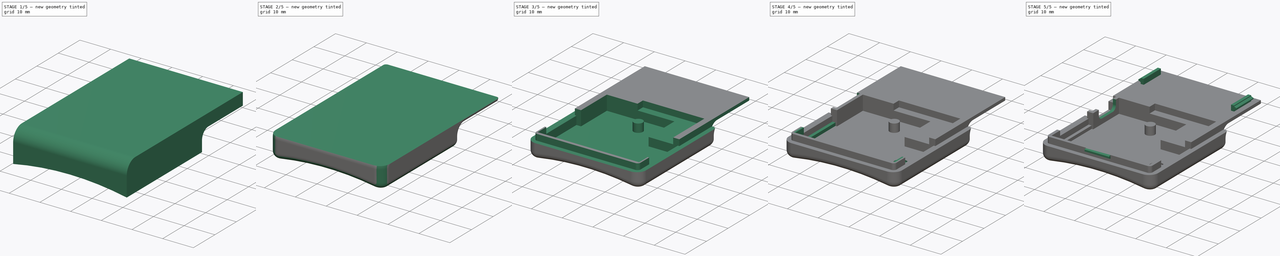
[diagram: build sequence overview — one tinted view per stage of 5, left to right]
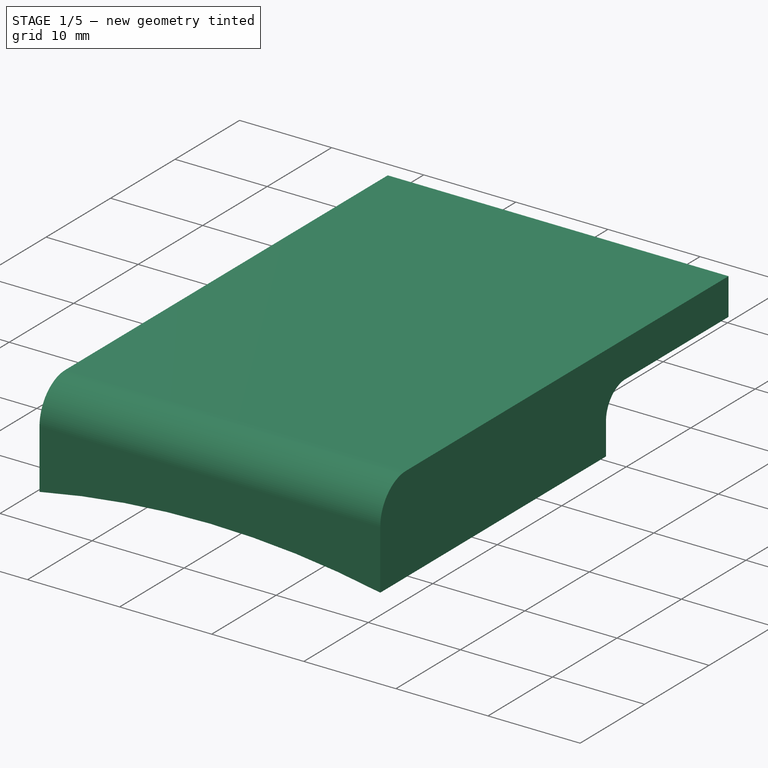
[diagram: stage 1 of 5 — iso view after this stage's code; geometry added in this stage tinted green]
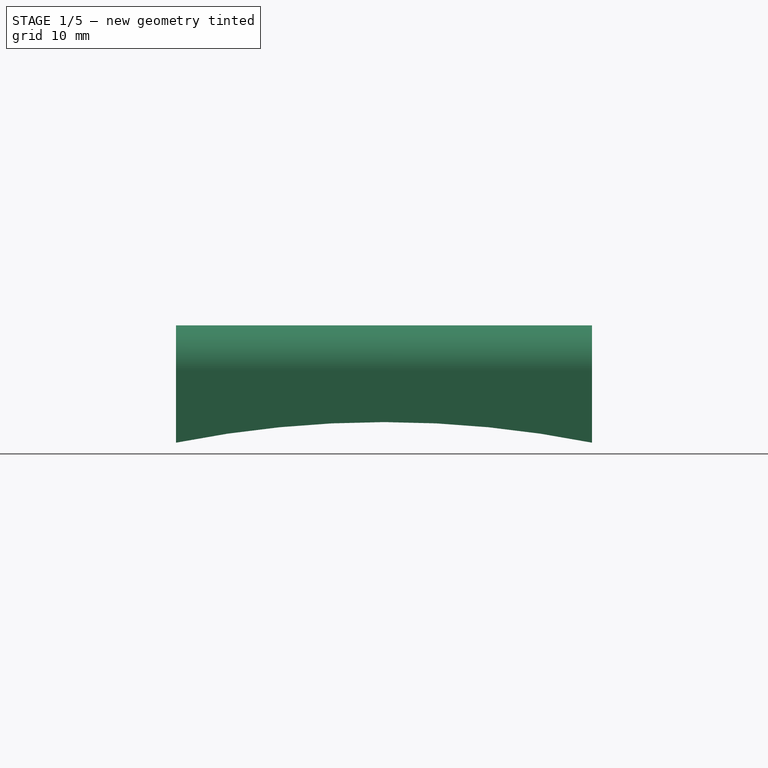
[diagram: stage 1 of 5 — front view after this stage's code; geometry added in this stage tinted green]
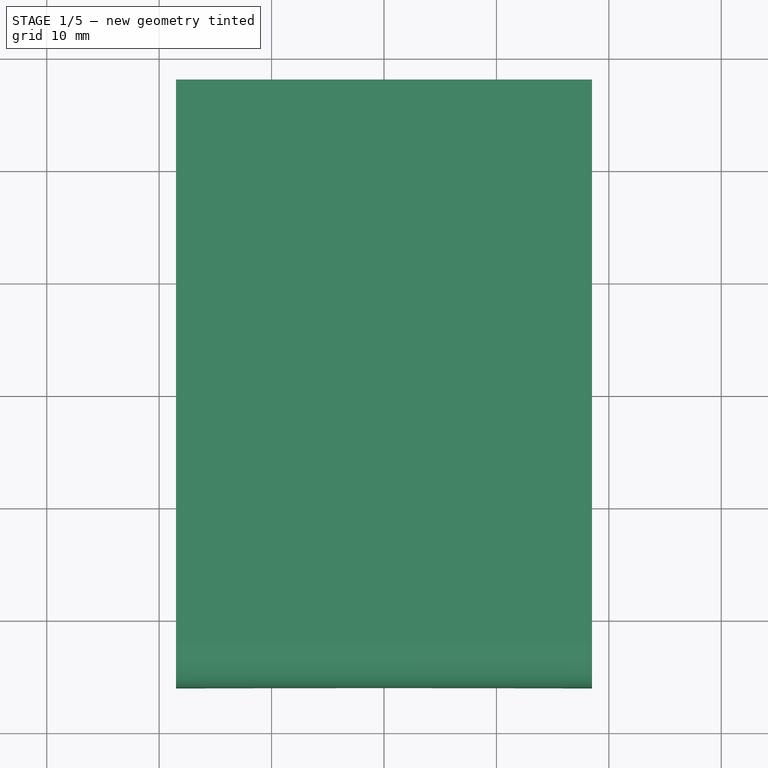
[diagram: stage 1 of 5 — top view after this stage's code; geometry added in this stage tinted green]
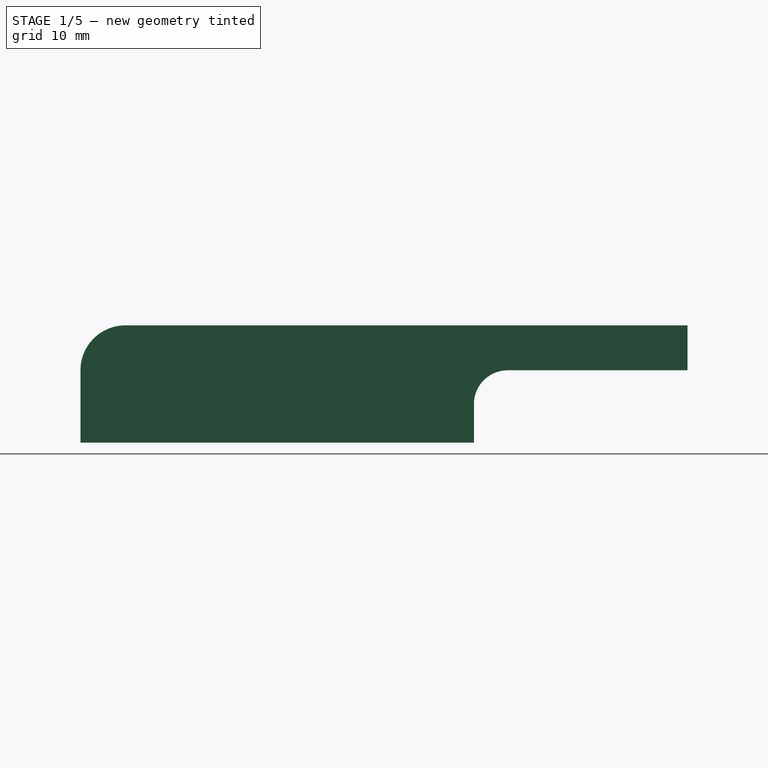
[diagram: stage 1 of 5 — right view after this stage's code; geometry added in this stage tinted green]
FCSTD DOCUMENT  (FreeCAD 0.17R13050 (Git))
Label: Limitter Small Lower
License: All rights reserved
LicenseURL: http://en.wikipedia.org/wiki/All_rights_reserved
objects: Sketcher::SketchObject×28, PartDesign::Pocket×12, Part::Feature×9, PartDesign::Fillet×7, PartDesign::Pad×5, App::Part×1, PartDesign::Body×1
note: 79 computed .brp shape members not serialized (recipe doc carries the construction recipe); baked Part::Feature solids carry a one-line shape summary decoded from their .brp

FEATURE [Sketcher::SketchObject] Sketch
  MapMode = 5
  Support = -> [XY_Plane]
  sketch-geometry (4):
    g0: LineSegment StartX=-18.5 StartY=38 StartZ=0 EndX=18.5 EndY=38 EndZ=0
    g1: LineSegment StartX=18.5 StartY=38 StartZ=0 EndX=18.5 EndY=-16 EndZ=0
    g2: LineSegment StartX=18.5 StartY=-16 StartZ=0 EndX=-18.5 EndY=-16 EndZ=0
    g3: LineSegment StartX=-18.5 StartY=-16 StartZ=0 EndX=-18.5 EndY=38 EndZ=0
  constraints (12):
    c: Coincident(g0,g1)
    c: Coincident(g1,g2)
    c: Coincident(g2,g3)
    c: Coincident(g3,g0)
    c: Horizontal(g0)
    c: Horizontal(g2)
    c: Vertical(g1)
    c: Vertical(g3)
    c: DistanceX(g0,g0) = 37
    c: DistanceX(g0,g-1) = 18.5
    c: DistanceY(g1,g1) = 54
    c: DistanceY(g1,g-1) = 16
FEATURE [PartDesign::Pad] Pad
  Length = 13
  Length2 = 100
  Profile = -> Sketch
  Type = 0
FEATURE [Part::Feature] Part__Feature  label="Arduino"
  Placement = pos=(-13,3.5,7.5) rot=(-1,0,0;1.5708rad)
  shape: bbox 33 x 17.8 x 1.8 mm, 449 faces (baked)
FEATURE [Part::Feature] Part__Feature003  label="Battery"
  Placement = pos=(0.5,-8.5,8) rot=(0,0,-1;1.5708rad)
  shape: bbox 31 x 10 x 4 mm, 10 faces (baked)
FEATURE [Part::Feature] Part__Feature004  label="BM019"
  Placement = pos=(0,16.5,10) rot=(0,0,1;1.5708rad)
  shape: bbox 27.94 x 38.1 x 1.95 mm, 118 faces (baked)
FEATURE [Part::Feature] Part__Feature005  label="HM-11"
  Placement = pos=(7,9.5,9.5) rot=(0,1,0;3.14159rad)
  shape: bbox 13.5 x 18.5 x 1.3 mm, 176 faces (baked)
FEATURE [Part::Feature] Part__Feature006  label="Libre"
  Placement = pos=(0,38,1) rot=(0,0,1;0rad)
  shape: bbox 37.88 x 37.88 x 5 mm, 4 faces (baked)
FEATURE [Sketcher::SketchObject] Sketch001
  MapMode = 5
  Placement = pos=(0,-16,0) rot=(1,0,0;1.5708rad)
  Support = -> [Pad]
  sketch-geometry (2):
    g0: ArcOfCircle CenterX=2e-12 CenterY=-90 CenterZ=0 NormalX=0 NormalY=0 NormalZ=1 AngleXU=0 Radius=94.3941 StartAngle=1.24737 EndAngle=1.89422
    g1: LineSegment StartX=-30 StartY=-0.5 StartZ=0 EndX=30 EndY=-0.5 EndZ=0
  constraints (6):
    c: DistanceX(g-1,g0) = 30
    c: DistanceX(g0,g-1) = 30
    c: Coincident(g1,g0)
    c: Coincident(g1,g0)
    c: DistanceY(g0,g-1) = 90
    c: DistanceY(g0,g-1) = 0.5
FEATURE [PartDesign::Pocket] Pocket
  BaseFeature = -> Pad
  Length = 55
  Profile = -> Sketch001
  Type = 0
FEATURE [Sketcher::SketchObject] Sketch002
  MapMode = 5
  Placement = pos=(0,38,0) rot=(0,0.707107,0.707107;3.14159rad)
  Support = -> [Pocket]
  sketch-geometry (4):
    g0: LineSegment StartX=-18.5 StartY=9 StartZ=0 EndX=18.5 EndY=9 EndZ=0
    g1: LineSegment StartX=18.5 StartY=9 StartZ=0 EndX=18.5 EndY=2.5 EndZ=0
    g2: LineSegment StartX=18.5 StartY=2.5 StartZ=0 EndX=-18.5 EndY=2.5 EndZ=0
    g3: LineSegment StartX=-18.5 StartY=2.5 StartZ=0 EndX=-18.5 EndY=9 EndZ=0
  constraints (12):
    c: Coincident(g0,g1)
    c: Coincident(g1,g2)
    c: Coincident(g2,g3)
    c: Coincident(g3,g0)
    c: Horizontal(g0)
    c: Horizontal(g2)
    c: Vertical(g1)
    c: Vertical(g3)
    c: DistanceY(g-1,g0) = 9
    c: DistanceX(g0,g0) = 37
    c: DistanceX(g2,g-1) = 18.5
    c: DistanceY(g3,g3) = 6.5
FEATURE [PartDesign::Pocket] Pocket001
  BaseFeature = -> Pocket
  Length = 19
  Profile = -> Sketch002
  Type = 0
FEATURE [Sketcher::SketchObject] Sketch003
  MapMode = 5
  Placement = pos=(-18,0,0) rot=(0.57735,-0.57735,-0.57735;2.0944rad)
  sketch-geometry (4):
    g0: LineSegment StartX=-15 StartY=11 StartZ=0 EndX=-4 EndY=11 EndZ=0
    g1: LineSegment StartX=-4 StartY=11 StartZ=0 EndX=-4 EndY=5 EndZ=0
    g2: LineSegment StartX=-4 StartY=5 StartZ=0 EndX=-15 EndY=5 EndZ=0
    g3: LineSegment StartX=-15 StartY=5 StartZ=0 EndX=-15 EndY=11 EndZ=0
  constraints (12):
    c: Coincident(g0,g1)
    c: Coincident(g1,g2)
    c: Coincident(g2,g3)
    c: Coincident(g3,g0)
    c: Horizontal(g0)
    c: Horizontal(g2)
    c: Vertical(g1)
    c: Vertical(g3)
    c: DistanceY(g1,g1) = 6
    c: DistanceX(g0,g0) = 11
    c: DistanceX(g1,g-1) = 4
    c: DistanceY(g-1,g1) = 5
FEATURE [Sketcher::SketchObject] Sketch004
  MapMode = 5
  Placement = pos=(-17,0,0) rot=(0.57735,-0.57735,-0.57735;2.0944rad)
  sketch-geometry (12):
    g0: LineSegment StartX=-13.5 StartY=9 StartZ=0 EndX=-13.5 EndY=7.75 EndZ=0
    g1: LineSegment StartX=-13.3536 StartY=7.39645 StartZ=0 EndX=-12.6036 EndY=6.64645 EndZ=0
    g2: LineSegment StartX=-12.25 StartY=6.5 StartZ=0 EndX=-6.75 EndY=6.5 EndZ=0
    g3: LineSegment StartX=-6.39645 StartY=6.64645 StartZ=0 EndX=-5.64645 EndY=7.39645 EndZ=0
    g4: LineSegment StartX=-5.5 StartY=7.75 StartZ=0 EndX=-5.5 EndY=9 EndZ=0
    g5: LineSegment StartX=-6 StartY=9.5 StartZ=0 EndX=-13 EndY=9.5 EndZ=0
    g6: ArcOfCircle CenterX=-13 CenterY=9 CenterZ=0 NormalX=0 NormalY=0 NormalZ=1 AngleXU=0 Radius=0.5 StartAngle=1.5708 EndAngle=3.14159
    g7: ArcOfCircle CenterX=-6 CenterY=9 CenterZ=0 NormalX=0 NormalY=0 NormalZ=1 AngleXU=0 Radius=0.5 StartAngle=0 EndAngle=1.5708
    g8: ArcOfCircle CenterX=-13 CenterY=7.75 CenterZ=0 NormalX=0 NormalY=0 NormalZ=1 AngleXU=0 Radius=0.5 StartAngle=3.14159 EndAngle=3.92699
    g9: ArcOfCircle CenterX=-12.25 CenterY=7 CenterZ=0 NormalX=0 NormalY=0 NormalZ=1 AngleXU=0 Radius=0.5 StartAngle=3.92699 EndAngle=4.71239
    g10: ArcOfCircle CenterX=-6.75 CenterY=7 CenterZ=0 NormalX=0 NormalY=0 NormalZ=1 AngleXU=0 Radius=0.5 StartAngle=4.71239 EndAngle=5.49779
    g11: ArcOfCircle CenterX=-6 CenterY=7.75 CenterZ=0 NormalX=0 NormalY=0 NormalZ=1 AngleXU=0 Radius=0.5 StartAngle=5.49779 EndAngle=6.28319
  constraints (30):
    c: Vertical(g0)
    c: Horizontal(g2)
    c: Vertical(g4)
    c: Horizontal(g5)
    c: Tangent(g0,g6) = -1.5708
    c: Tangent(g5,g6) = -1.5708
    c: Tangent(g5,g7) = -1.5708
    c: Tangent(g4,g7) = -1.5708
    c: Tangent(g0,g8) = -1.5708
    c: Tangent(g1,g8) = -1.5708
    c: Tangent(g1,g9) = -1.5708
    c: Tangent(g2,g9) = -1.5708
    c: Tangent(g2,g10) = -1.5708
    c: Tangent(g3,g10) = -1.5708
    c: Tangent(g3,g11) = -1.5708
    c: Tangent(g4,g11) = -1.5708
    c: DistanceX(g4,g-1) = 5.5
    c: DistanceX(g0,g-1) = 13.5
    c: Radius(g7) = 0.5
    c: Equal(g6,g8)
    c: Equal(g8,g10)
    c: Equal(g10,g7)
    c: Equal(g7,g11)
    c: DistanceY(g-1,g5) = 9.5
    c: DistanceY(g-1,g2) = 6.5
    c: Equal(g9,g10)
    c: DistanceY(g4,g4) = 1.25
    c: Equal(g4,g0)
    c: DistanceX(g2,g2) = 5.5
    c: DistanceX(g2,g-1) = 6.75
FEATURE [Sketcher::SketchObject] Sketch005
  MapMode = 5
  Placement = pos=(0,37.5,0) rot=(0,0.707107,0.707107;3.14159rad)
  sketch-geometry (4):
    g0: LineSegment StartX=-20 StartY=14 StartZ=0 EndX=20 EndY=14 EndZ=0
    g1: LineSegment StartX=20 StartY=14 StartZ=0 EndX=20 EndY=10 EndZ=0
    g2: LineSegment StartX=20 StartY=10 StartZ=0 EndX=-20 EndY=10 EndZ=0
    g3: LineSegment StartX=-20 StartY=10 StartZ=0 EndX=-20 EndY=14 EndZ=0
  constraints (12):
    c: Coincident(g0,g1)
    c: Coincident(g1,g2)
    c: Coincident(g2,g3)
    c: Coincident(g3,g0)
    c: Horizontal(g0)
    c: Horizontal(g2)
    c: Vertical(g1)
    c: Vertical(g3)
    c: DistanceX(g0,g0) = 40
    c: DistanceY(g1,g1) = 4
    c: DistanceY(g-1,g1) = 10
    c: DistanceX(g-1,g0) = 20
FEATURE [Sketcher::SketchObject] Sketch006
  MapMode = 5
  Placement = pos=(0,0,10) rot=(0,0,1;0rad)
  sketch-geometry (4):
    g0: LineSegment StartX=-3 StartY=16.75 StartZ=0 EndX=16 EndY=16.75 EndZ=0
    g1: LineSegment StartX=16 StartY=16.75 StartZ=0 EndX=16 EndY=2 EndZ=0
    g2: LineSegment StartX=16 StartY=2 StartZ=0 EndX=-3 EndY=2 EndZ=0
    g3: LineSegment StartX=-3 StartY=2 StartZ=0 EndX=-3 EndY=16.75 EndZ=0
  constraints (12):
    c: Coincident(g0,g1)
    c: Coincident(g1,g2)
    c: Coincident(g2,g3)
    c: Coincident(g3,g0)
    c: Horizontal(g0)
    c: Horizontal(g2)
    c: Vertical(g1)
    c: Vertical(g3)
    c: DistanceX(g0,g-1) = 3
    c: DistanceX(g0,g0) = 19
    c: DistanceY(g-1,g2) = 2
    c: DistanceY(g1,g1) = 14.75
FEATURE [Sketcher::SketchObject] Sketch007
  MapMode = 5
  Placement = pos=(0,0,10) rot=(0,0,1;0rad)
  sketch-geometry (4):
    g0: LineSegment StartX=-16 StartY=16.75 StartZ=0 EndX=3.25 EndY=16.75 EndZ=0
    g1: LineSegment StartX=3.25 StartY=16.75 StartZ=0 EndX=3.25 EndY=2.25 EndZ=0
    g2: LineSegment StartX=3.25 StartY=2.25 StartZ=0 EndX=-16 EndY=2.25 EndZ=0
    g3: LineSegment StartX=-16 StartY=2.25 StartZ=0 EndX=-16 EndY=16.75 EndZ=0
  constraints (12):
    c: Coincident(g0,g1)
    c: Coincident(g1,g2)
    c: Coincident(g2,g3)
    c: Coincident(g3,g0)
    c: Horizontal(g0)
    c: Horizontal(g2)
    c: Vertical(g1)
    c: Vertical(g3)
    c: DistanceX(g-1,g0) = 3.25
    c: DistanceX(g0,g0) = 19.25
    c: DistanceY(g-1,g1) = 2.25
    c: DistanceY(g1,g1) = 14.5
FEATURE [Sketcher::SketchObject] Sketch008
  MapMode = 5
  Placement = pos=(0,0,10) rot=(0,0,1;0rad)
  sketch-geometry (4):
    g0: LineSegment StartX=-16.75 StartY=2.25 StartZ=0 EndX=16.75 EndY=2.25 EndZ=0
    g1: LineSegment StartX=16.75 StartY=2.25 StartZ=0 EndX=16.75 EndY=-15.75 EndZ=0
    g2: LineSegment StartX=16.75 StartY=-15.75 StartZ=0 EndX=-16.75 EndY=-15.75 EndZ=0
    g3: LineSegment StartX=-16.75 StartY=-15.75 StartZ=0 EndX=-16.75 EndY=2.25 EndZ=0
  constraints (12):
    c: Coincident(g0,g1)
    c: Coincident(g1,g2)
    c: Coincident(g2,g3)
    c: Coincident(g3,g0)
    c: Horizontal(g0)
    c: Horizontal(g2)
    c: Vertical(g1)
    c: Vertical(g3)
    c: DistanceX(g-1,g0) = 16.75
    c: DistanceX(g0,g0) = 33.5
    c: DistanceY(g1,g1) = 18
    c: DistanceY(g-1,g0) = 2.25
FEATURE [Sketcher::SketchObject] Sketch009
  MapMode = 5
  Placement = pos=(0,0,5.75) rot=(0,0,1;0rad)
  sketch-geometry (4):
    g0: LineSegment StartX=9 StartY=-3 StartZ=0 EndX=13 EndY=-3 EndZ=0
    g1: LineSegment StartX=13 StartY=-3 StartZ=0 EndX=13 EndY=-11 EndZ=0
    g2: LineSegment StartX=13 StartY=-11 StartZ=0 EndX=9 EndY=-11 EndZ=0
    g3: LineSegment StartX=9 StartY=-11 StartZ=0 EndX=9 EndY=-3 EndZ=0
  constraints (12):
    c: Coincident(g0,g1)
    c: Coincident(g1,g2)
    c: Coincident(g2,g3)
    c: Coincident(g3,g0)
    c: Horizontal(g0)
    c: Horizontal(g2)
    c: Vertical(g1)
    c: Vertical(g3)
    c: DistanceY(g0,g-1) = 3
    c: DistanceY(g1,g1) = 8
    c: DistanceX(g-1,g0) = 9
    c: DistanceX(g0,g0) = 4
FEATURE [Sketcher::SketchObject] Sketch010
  MapMode = 5
  Placement = pos=(0,0,5.25) rot=(0,0,1;0rad)
  sketch-geometry (1):
    g0: Circle CenterX=11 CenterY=-7 CenterZ=0 NormalX=0 NormalY=0 NormalZ=1 AngleXU=0 Radius=0.5
  constraints (3):
    c: DistanceX(g-1,g0) = 11
    c: DistanceY(g0,g-1) = 7
    c: Radius(g0) = 0.5
FEATURE [Sketcher::SketchObject] Sketch011
  MapMode = 5
  Placement = pos=(0,0,10) rot=(0,0,1;0rad)
  sketch-geometry (4):
    g0: LineSegment StartX=-17 StartY=13.5 StartZ=0 EndX=-16 EndY=13.5 EndZ=0
    g1: LineSegment StartX=-16 StartY=13.5 StartZ=0 EndX=-16 EndY=5.5 EndZ=0
    g2: LineSegment StartX=-16 StartY=5.5 StartZ=0 EndX=-17 EndY=5.5 EndZ=0
    g3: LineSegment StartX=-17 StartY=5.5 StartZ=0 EndX=-17 EndY=13.5 EndZ=0
  constraints (12):
    c: Coincident(g0,g1)
    c: Coincident(g1,g2)
    c: Coincident(g2,g3)
    c: Coincident(g3,g0)
    c: Horizontal(g0)
    c: Horizontal(g2)
    c: Vertical(g1)
    c: Vertical(g3)
    c: DistanceX(g0,g0) = 1
    c: DistanceX(g1,g-1) = 16
    c: DistanceY(g-1,g1) = 5.5
    c: DistanceY(g1,g1) = 8
FEATURE [Sketcher::SketchObject] Sketch012
  MapMode = 5
  Placement = pos=(0,0,10) rot=(0,0,1;0rad)
  sketch-geometry (4):
    g0: LineSegment StartX=-15.5 StartY=-15 StartZ=0 EndX=15.5 EndY=-15 EndZ=0
    g1: LineSegment StartX=15.5 StartY=-15 StartZ=0 EndX=15.5 EndY=-16 EndZ=0
    g2: LineSegment StartX=15.5 StartY=-16 StartZ=0 EndX=-15.5 EndY=-16 EndZ=0
    g3: LineSegment StartX=-15.5 StartY=-16 StartZ=0 EndX=-15.5 EndY=-15 EndZ=0
  constraints (12):
    c: Coincident(g0,g1)
    c: Coincident(g1,g2)
    c: Coincident(g2,g3)
    c: Coincident(g3,g0)
    c: Horizontal(g0)
    c: Horizontal(g2)
    c: Vertical(g1)
    c: Vertical(g3)
    c: DistanceY(g0,g-1) = 15
    c: DistanceX(g-1,g0) = 15.5
    c: DistanceX(g2,g2) = 31
    c: DistanceY(g1,g1) = 1
FEATURE [Sketcher::SketchObject] Sketch013
  MapMode = 5
  Placement = pos=(0,0,10) rot=(0,0,1;0rad)
  sketch-geometry (8):
    g0: LineSegment StartX=-16.5 StartY=35 StartZ=0 EndX=-15.5 EndY=35 EndZ=0
    g1: LineSegment StartX=-15.5 StartY=35 StartZ=0 EndX=-15.5 EndY=18 EndZ=0
    g2: LineSegment StartX=-15.5 StartY=18 StartZ=0 EndX=-16.5 EndY=18 EndZ=0
    g3: LineSegment StartX=-16.5 StartY=18 StartZ=0 EndX=-16.5 EndY=35 EndZ=0
    g4: LineSegment StartX=15.5 StartY=35 StartZ=0 EndX=16.5 EndY=35 EndZ=0
    g5: LineSegment StartX=16.5 StartY=35 StartZ=0 EndX=16.5 EndY=18 EndZ=0
    g6: LineSegment StartX=16.5 StartY=18 StartZ=0 EndX=15.5 EndY=18 EndZ=0
    g7: LineSegment StartX=15.5 StartY=18 StartZ=0 EndX=15.5 EndY=35 EndZ=0
  constraints (24):
    c: Coincident(g0,g1)
    c: Coincident(g1,g2)
    c: Coincident(g2,g3)
    c: Coincident(g3,g0)
    c: Horizontal(g0)
    c: Horizontal(g2)
    c: Vertical(g1)
    c: Vertical(g3)
    c: Coincident(g4,g5)
    c: Coincident(g5,g6)
    c: Coincident(g6,g7)
    c: Coincident(g7,g4)
    c: Horizontal(g4)
    c: Horizontal(g6)
    c: Vertical(g5)
    c: Vertical(g7)
    c: DistanceY(g-1,g1) = 18
    c: DistanceX(g1,g-1) = 15.5
    c: DistanceY(g1,g1) = 17
    c: DistanceX(g2,g2) = 1
    c: Equal(g3,g7)
    c: Equal(g0,g4)
    c: DistanceX(g-1,g6) = 15.5
    c: DistanceY(g-1,g6) = 18
FEATURE [Part::Feature] Part__Feature007  label="_CUS-12-body"
  Placement = pos=(0,-1.4,0) rot=(0,0,1;0rad)
  shape: bbox 7.7 x 1.9 x 3.5 mm, 178 faces (baked)
FEATURE [Part::Feature] Part__Feature008  label="_CUS-12-slider"
  Placement = pos=(0.75,-0.2,0.8) rot=(0,0,1;0rad)
  shape: bbox 1.3 x 1.1 x 2.05 mm, 11 faces (baked)
FEATURE [App::Part] CUS_12TB  label="Switch"
  Group = -> [Part__Feature007,Part__Feature008]
  License = CC BY 3.0
  LicenseURL = http://creativecommons.org/licenses/by/3.0/
  Origin = -> Origin001
  Placement = pos=(13.7,10,5.5) rot=(0.57735,-0.57735,0.57735;4.18879rad)
FEATURE [Part::Feature] Part__Feature009  label="SparkCharger"
  Placement = pos=(-15,6,5.5) rot=(0,0,1;0rad)
  shape: bbox 23.28 x 10.15 x 4.321 mm, 447 faces (baked)
FEATURE [PartDesign::Fillet] Fillet
  Base = -> Pocket001 [Edge16]
  BaseFeature = -> Pocket001
  Radius = 3
FEATURE [PartDesign::Fillet] Fillet001
  Base = -> Fillet [Edge17]
  BaseFeature = -> Fillet
  Radius = 4
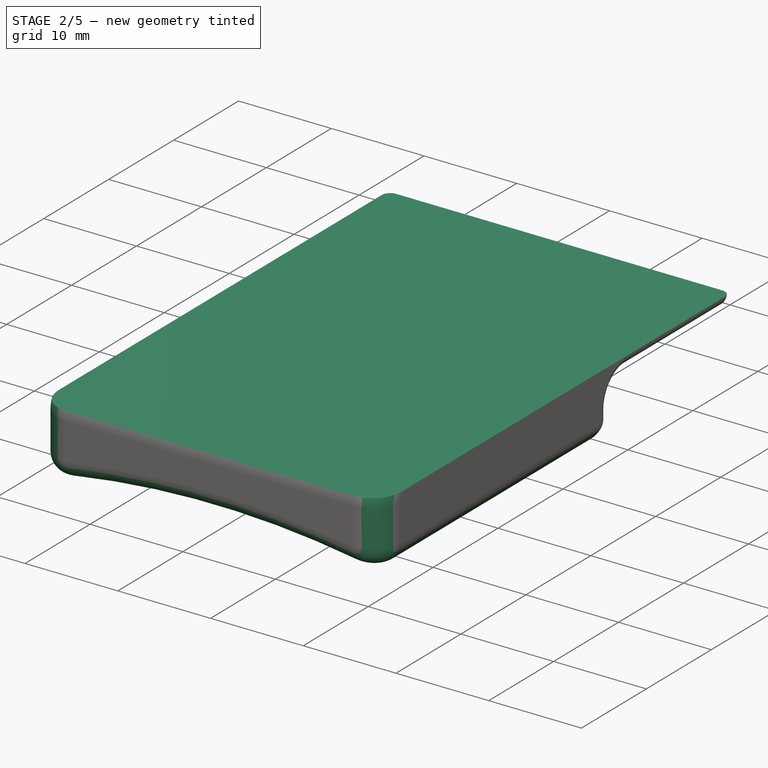
[diagram: stage 2 of 5 — iso view after this stage's code; geometry added in this stage tinted green]
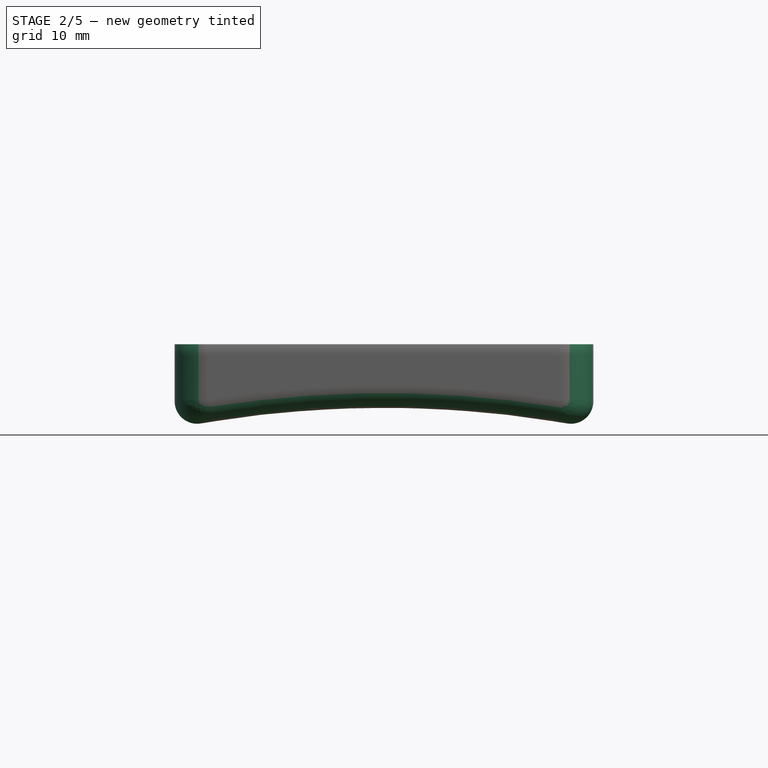
[diagram: stage 2 of 5 — front view after this stage's code; geometry added in this stage tinted green]
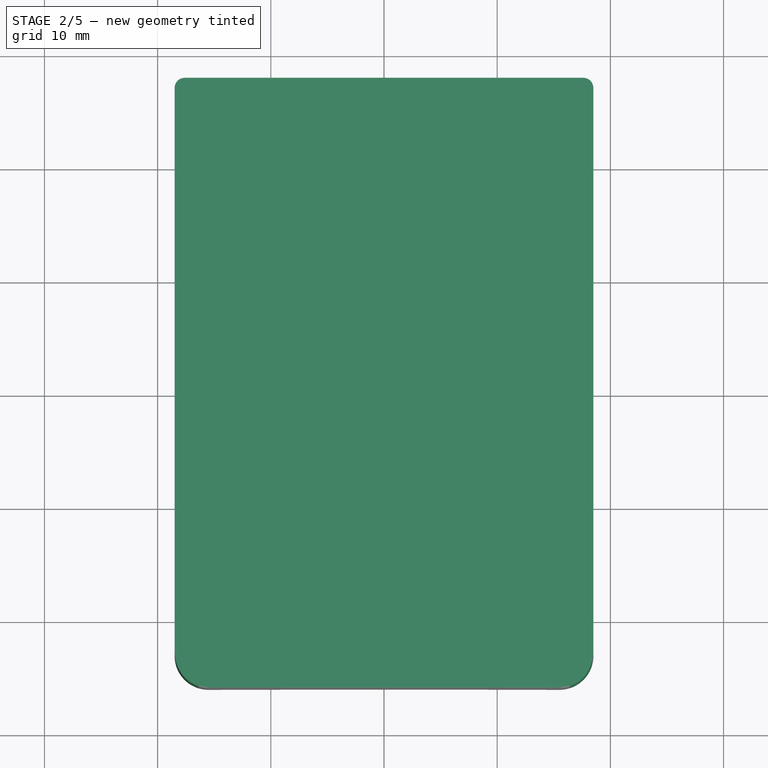
[diagram: stage 2 of 5 — top view after this stage's code; geometry added in this stage tinted green]
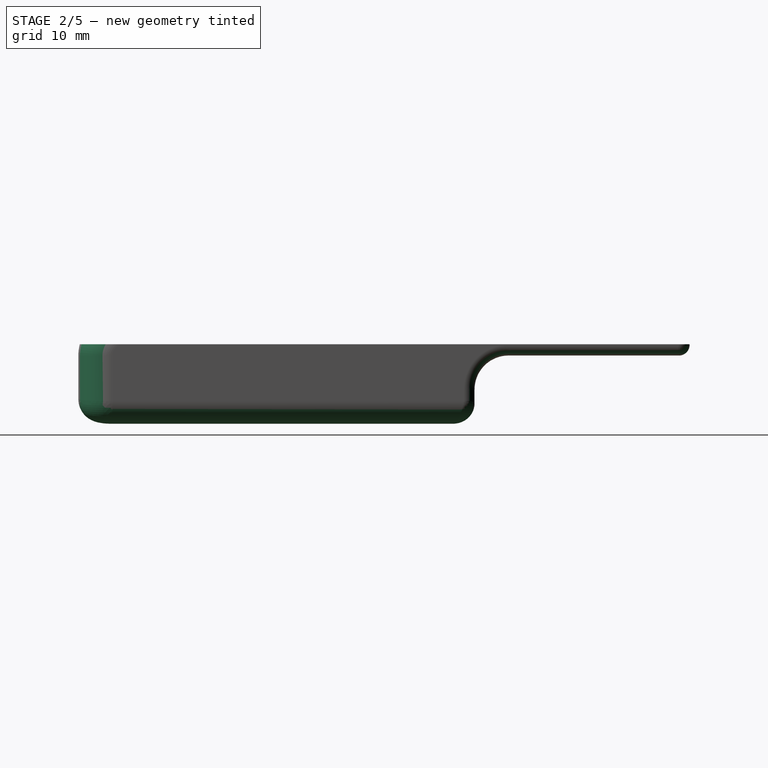
[diagram: stage 2 of 5 — right view after this stage's code; geometry added in this stage tinted green]
FEATURE [PartDesign::Fillet] Fillet002
  Base = -> Fillet001 [Edge11,Edge1]
  BaseFeature = -> Fillet001
  Radius = 3
FEATURE [PartDesign::Fillet] Fillet003
  Base = -> Fillet002 [Edge5,Edge10,Edge21]
  BaseFeature = -> Fillet002
  Radius = 0.95
FEATURE [PartDesign::Fillet] Fillet004
  Base = -> Fillet003 [Edge12]
  BaseFeature = -> Fillet003
  Radius = 0.9
FEATURE [PartDesign::Fillet] Fillet005  label="Full Body"
  Base = -> Fillet004 [Edge7,Edge29]
  BaseFeature = -> Fillet004
  Radius = 2
FEATURE [Sketcher::SketchObject] Sketch014
  MapMode = 5
  Placement = pos=(0,-16,0) rot=(1,0,0;1.5708rad)
  Support = -> [Fillet005]
  sketch-geometry (4):
    g0: LineSegment StartX=-20 StartY=13.5 StartZ=0 EndX=20 EndY=13.5 EndZ=0
    g1: LineSegment StartX=20 StartY=13.5 StartZ=0 EndX=20 EndY=10 EndZ=0
    g2: LineSegment StartX=20 StartY=10 StartZ=0 EndX=-20 EndY=10 EndZ=0
    g3: LineSegment StartX=-20 StartY=10 StartZ=0 EndX=-20 EndY=13.5 EndZ=0
  constraints (12):
    c: Coincident(g0,g1)
    c: Coincident(g1,g2)
    c: Coincident(g2,g3)
    c: Coincident(g3,g0)
    c: Horizontal(g0)
    c: Horizontal(g2)
    c: Vertical(g1)
    c: Vertical(g3)
    c: DistanceX(g0,g0) = 40
    c: DistanceX(g-1,g1) = 20
    c: DistanceY(g1,g1) = 3.5
    c: DistanceY(g-1,g1) = 10
FEATURE [PartDesign::Pocket] Pocket002
  BaseFeature = -> Fillet005
  Length = 54
  Profile = -> Sketch014
  Type = 0
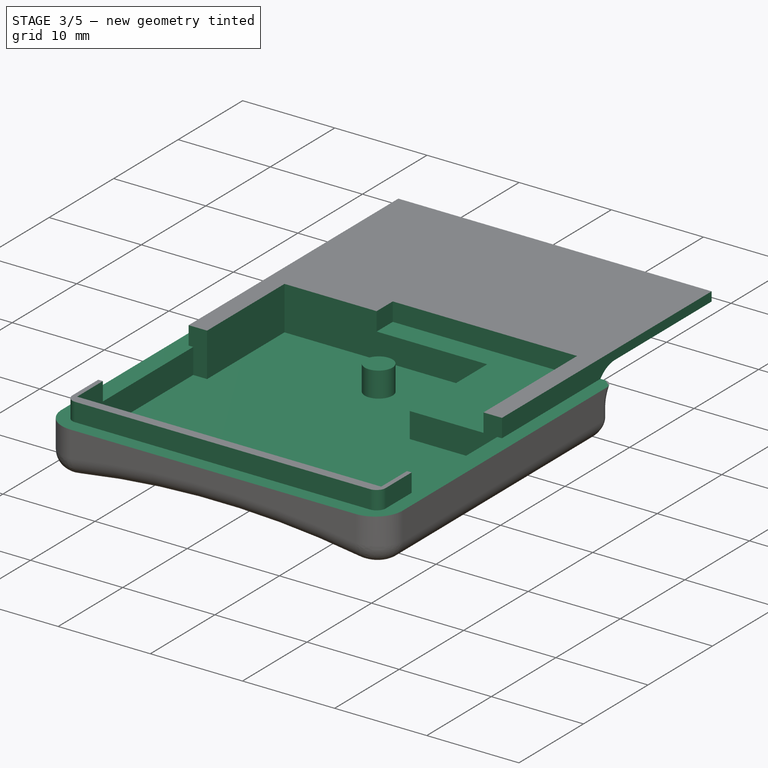
[diagram: stage 3 of 5 — iso view after this stage's code; geometry added in this stage tinted green]
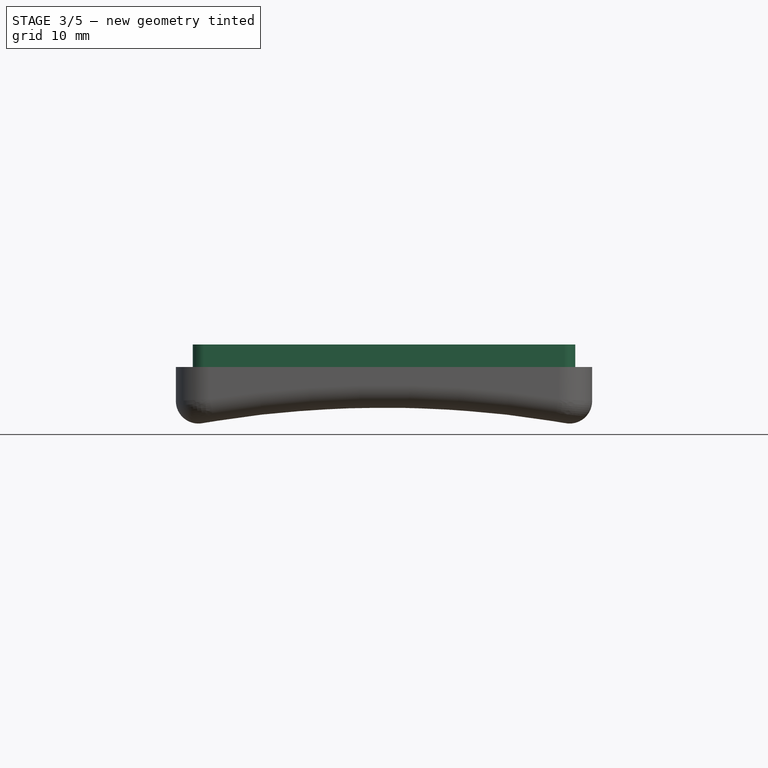
[diagram: stage 3 of 5 — front view after this stage's code; geometry added in this stage tinted green]
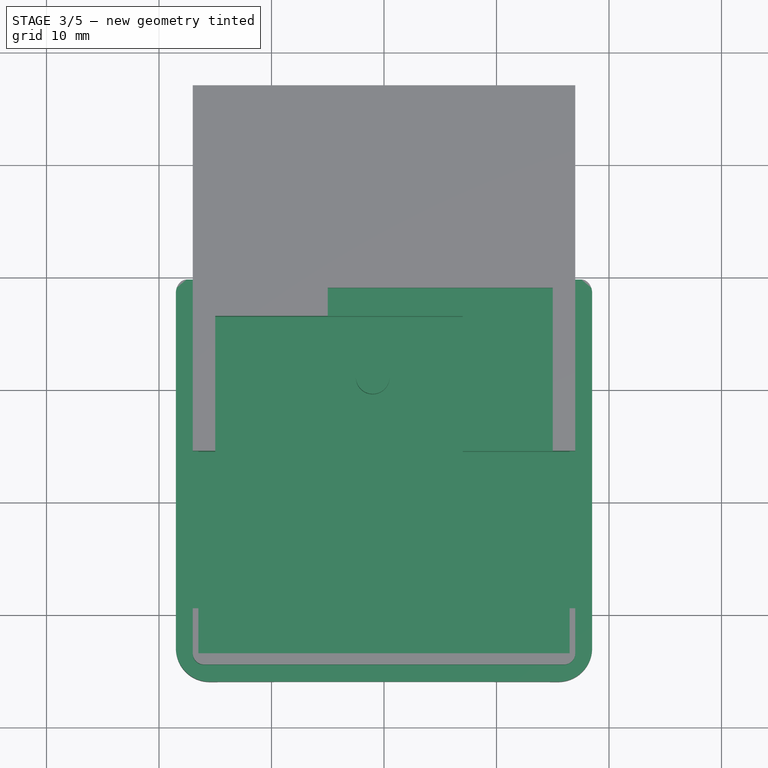
[diagram: stage 3 of 5 — top view after this stage's code; geometry added in this stage tinted green]
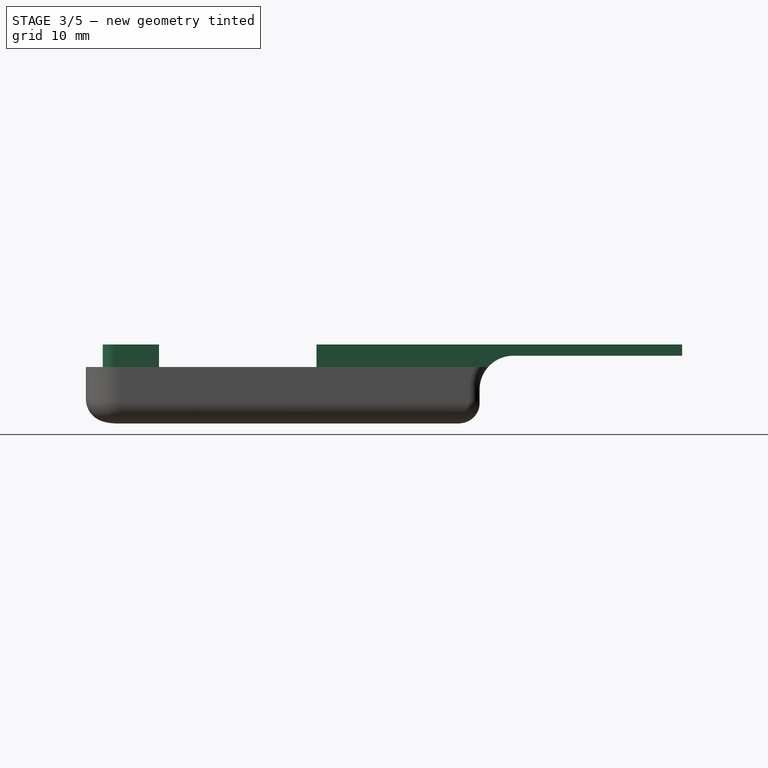
[diagram: stage 3 of 5 — right view after this stage's code; geometry added in this stage tinted green]
FEATURE [Sketcher::SketchObject] Sketch015
  MapMode = 5
  Placement = pos=(0,0,10) rot=(0,0,1;0rad)
  Support = -> [Pocket002]
  sketch-geometry (8):
    g0: LineSegment StartX=-17 StartY=-14.5 StartZ=0 EndX=17 EndY=-14.5 EndZ=0
    g1: LineSegment StartX=17 StartY=-14.5 StartZ=0 EndX=17 EndY=37 EndZ=0
    g2: LineSegment StartX=17 StartY=37 StartZ=0 EndX=-17 EndY=37 EndZ=0
    g3: LineSegment StartX=-17 StartY=37 StartZ=0 EndX=-17 EndY=-14.5 EndZ=0
    g4: LineSegment StartX=-20 StartY=39 StartZ=0 EndX=20 EndY=39 EndZ=0
    g5: LineSegment StartX=20 StartY=39 StartZ=0 EndX=20 EndY=-17 EndZ=0
    g6: LineSegment StartX=20 StartY=-17 StartZ=0 EndX=-20 EndY=-17 EndZ=0
    g7: LineSegment StartX=-20 StartY=-17 StartZ=0 EndX=-20 EndY=39 EndZ=0
  constraints (24):
    c: Coincident(g0,g1)
    c: Coincident(g1,g2)
    c: Coincident(g2,g3)
    c: Coincident(g3,g0)
    c: Horizontal(g0)
    c: Horizontal(g2)
    c: Vertical(g1)
    c: Vertical(g3)
    c: DistanceX(g0,g-1) = 17
    c: DistanceX(g0,g0) = 34
    c: DistanceY(g-1,g0) = -14.5
    c: DistanceY(g1,g1) = -51.5
    c: Coincident(g4,g5)
    c: Coincident(g5,g6)
    c: Coincident(g6,g7)
    c: Coincident(g7,g4)
    c: Horizontal(g4)
    c: Horizontal(g6)
    c: Vertical(g5)
    c: Vertical(g7)
    c: DistanceX(g4,g-1) = 20
    c: DistanceX(g4,g4) = 40
    c: DistanceY(g5,g-1) = 17
    c: DistanceY(g5,g5) = 56
FEATURE [PartDesign::Pocket] Pocket003
  BaseFeature = -> Pocket002
  Length = 2
  Profile = -> Sketch015
  Type = 0
FEATURE [Sketcher::SketchObject] Sketch016
  MapMode = 5
  Placement = pos=(0,0,10) rot=(0,0,1;0rad)
  Support = -> [Pocket003]
  sketch-geometry (9):
    g0: LineSegment StartX=-16.5 StartY=-13.5 StartZ=0 EndX=16.5 EndY=-13.5 EndZ=0
    g1: LineSegment StartX=16.5 StartY=-13.5 StartZ=0 EndX=16.5 EndY=4.5 EndZ=0
    g2: LineSegment StartX=16.5 StartY=4.5 StartZ=0 EndX=7 EndY=4.5 EndZ=0
    g3: LineSegment StartX=7 StartY=4.5 StartZ=0 EndX=7 EndY=16.5 EndZ=0
    g4: LineSegment StartX=7 StartY=16.5 StartZ=0 EndX=-15 EndY=16.5 EndZ=0
    g5: LineSegment StartX=-15 StartY=16.5 StartZ=0 EndX=-15 EndY=4.5 EndZ=0
    g6: LineSegment StartX=-15 StartY=4.5 StartZ=0 EndX=-16.5 EndY=4.5 EndZ=0
    g7: LineSegment StartX=-16.5 StartY=4.5 StartZ=0 EndX=-16.5 EndY=-13.5 EndZ=0
    g8: Circle CenterX=-1 CenterY=11.1 CenterZ=0 NormalX=0 NormalY=0 NormalZ=1 AngleXU=0 Radius=1.5
  constraints (26):
    c: Horizontal(g0)
    c: Coincident(g0,g1)
    c: Vertical(g1)
    c: Coincident(g1,g2)
    c: Horizontal(g2)
    c: Coincident(g2,g3)
    c: Vertical(g3)
    c: Coincident(g3,g4)
    c: Horizontal(g4)
    c: Coincident(g4,g5)
    c: Vertical(g5)
    c: Coincident(g5,g6)
    c: Horizontal(g6)
    c: Coincident(g6,g7)
    c: Coincident(g7,g0)
    c: Vertical(g7)
    c: DistanceX(g-1,g3) = 7
    c: DistanceX(g2,g2) = 9.5
    c: DistanceX(g0,g0) = 33
    c: DistanceX(g6,g6) = 1.5
    c: DistanceY(g-1,g3) = 16.5
    c: DistanceY(g-1,g2) = 4.5
    c: DistanceY(g5,g2) = 0
    c: DistanceY(g-1,g8) = 11.1
    c: DistanceX(g8,g-1) = 1
    c: Radius(g8) = 1.5
FEATURE [PartDesign::Pocket] Pocket004
  BaseFeature = -> Pocket003
  Length = 4.75
  Profile = -> Sketch016
  Type = 0
FEATURE [PartDesign::Fillet] Fillet007
  Base = -> Pocket004 [Edge58,Edge39]
  BaseFeature = -> Pocket004
  Radius = 1
FEATURE [Sketcher::SketchObject] Sketch019
  MapMode = 5
  Placement = pos=(0,0,10) rot=(0,0,1;0rad)
  Support = -> [Fillet007]
  sketch-geometry (8):
    g0: LineSegment StartX=-17 StartY=4.5 StartZ=0 EndX=-17 EndY=-9.5 EndZ=0
    g1: LineSegment StartX=-17 StartY=-9.5 StartZ=0 EndX=17 EndY=-9.5 EndZ=0
    g2: LineSegment StartX=17 StartY=-9.5 StartZ=0 EndX=17 EndY=4.5 EndZ=0
    g3: LineSegment StartX=17 StartY=4.5 StartZ=0 EndX=15 EndY=4.5 EndZ=0
    g4: LineSegment StartX=15 StartY=4.5 StartZ=0 EndX=15 EndY=19 EndZ=0
    g5: LineSegment StartX=15 StartY=19 StartZ=0 EndX=-5 EndY=19 EndZ=0
    g6: LineSegment StartX=-5 StartY=19 StartZ=0 EndX=-5 EndY=4.5 EndZ=0
    g7: LineSegment StartX=-5 StartY=4.5 StartZ=0 EndX=-17 EndY=4.5 EndZ=0
  constraints (24):
    c: Vertical(g0)
    c: Coincident(g0,g1)
    c: Horizontal(g1)
    c: Coincident(g1,g2)
    c: Vertical(g2)
    c: Coincident(g2,g3)
    c: Horizontal(g3)
    c: Coincident(g3,g4)
    c: Vertical(g4)
    c: Coincident(g4,g5)
    c: Horizontal(g5)
    c: Coincident(g5,g6)
    c: Vertical(g6)
    c: Coincident(g6,g7)
    c: Coincident(g7,g0)
    c: Horizontal(g7)
    c: DistanceX(g-1,g1) = 17
    c: DistanceX(g3,g3) = 2
    c: DistanceX(g1,g1) = 34
    c: DistanceX(g7,g7) = 12
    c: DistanceY(g0,g-1) = 9.5
    c: DistanceY(g-1,g6) = 4.5
    c: DistanceY(g6,g3) = 0
    c: DistanceY(g6,g6) = 14.5
FEATURE [PartDesign::Pocket] Pocket005
  BaseFeature = -> Fillet007
  Length = 2
  Profile = -> Sketch019
  Type = 0
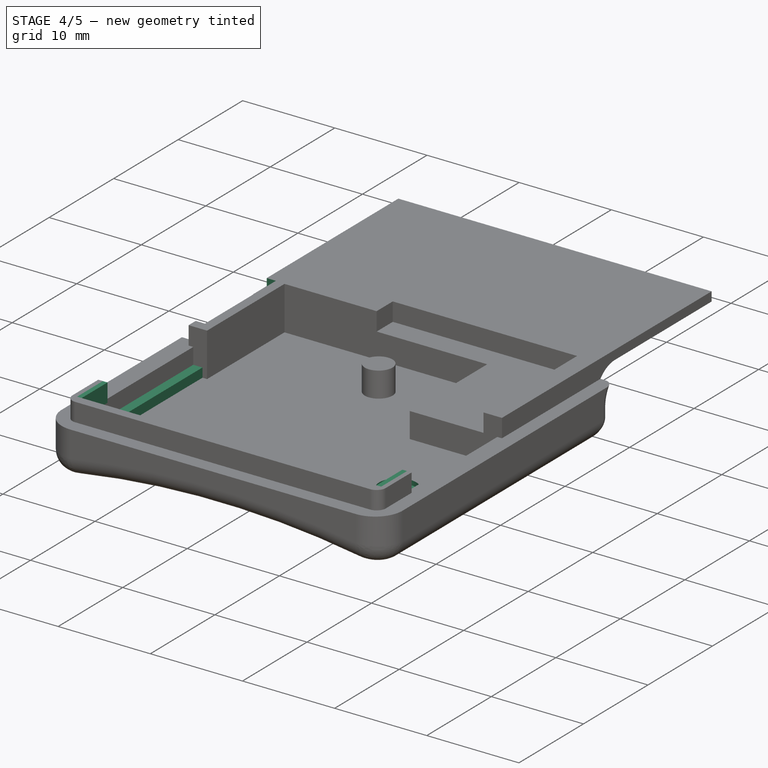
[diagram: stage 4 of 5 — iso view after this stage's code; geometry added in this stage tinted green]
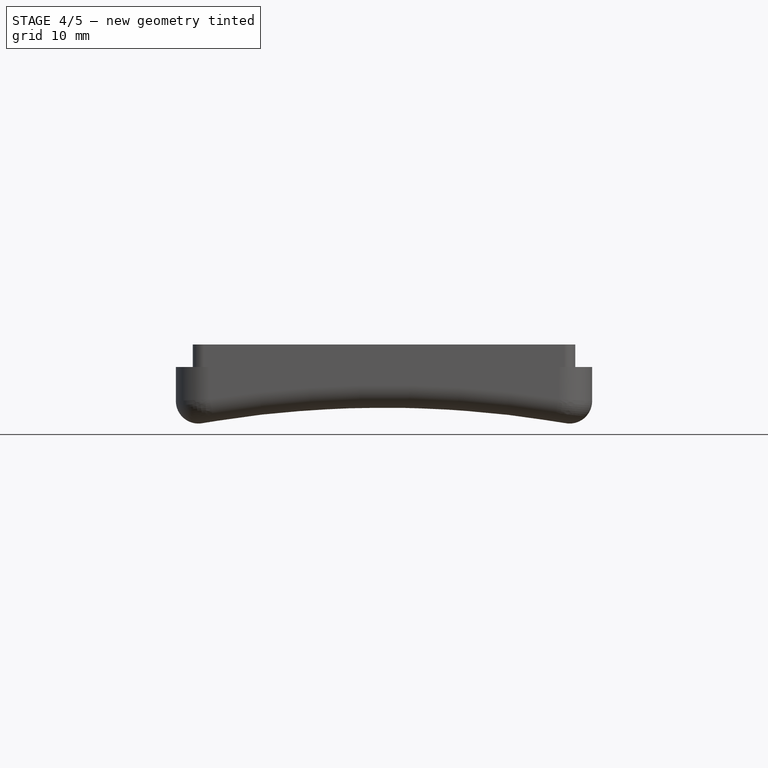
[diagram: stage 4 of 5 — front view after this stage's code; geometry added in this stage tinted green]
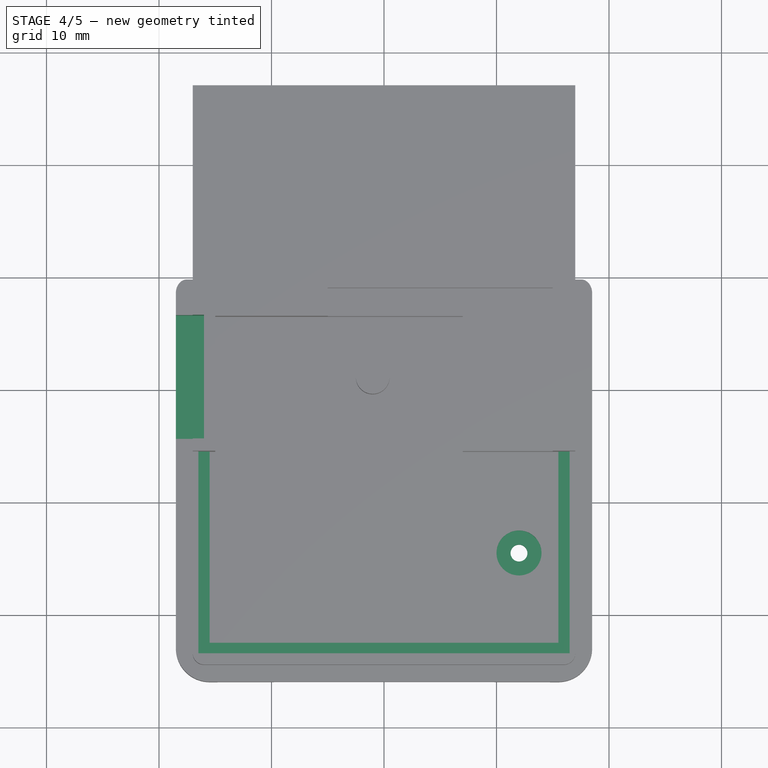
[diagram: stage 4 of 5 — top view after this stage's code; geometry added in this stage tinted green]
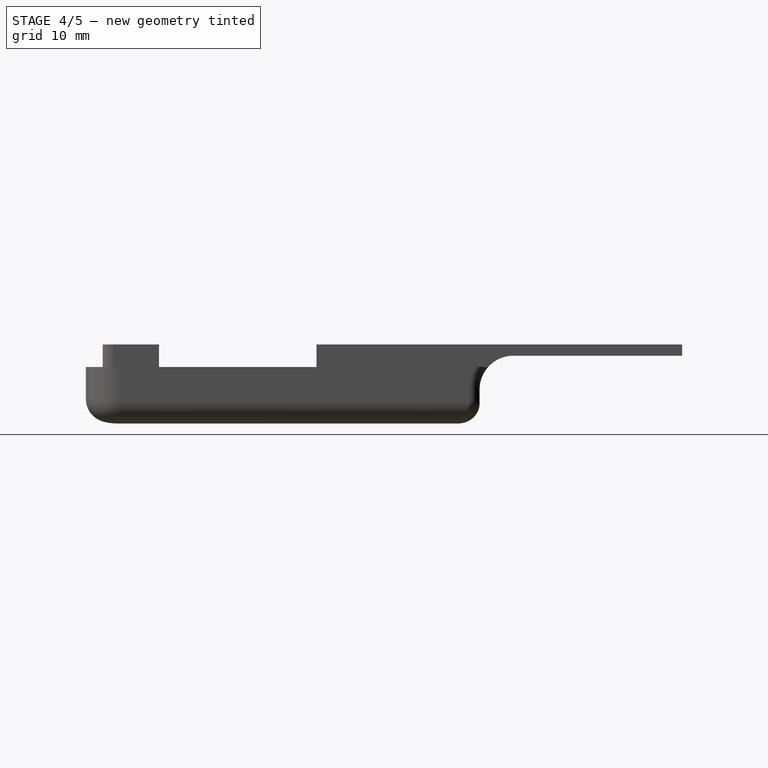
[diagram: stage 4 of 5 — right view after this stage's code; geometry added in this stage tinted green]
FEATURE [Sketcher::SketchObject] Sketch020
  MapMode = 5
  Placement = pos=(0,-13.5,0) rot=(0,0.707107,0.707107;3.14159rad)
  Support = -> [Pocket005]
  sketch-geometry (8):
    g0: LineSegment StartX=-16.5 StartY=10 StartZ=0 EndX=-16 EndY=10 EndZ=0
    g1: LineSegment StartX=-16 StartY=10 StartZ=0 EndX=-16 EndY=8 EndZ=0
    g2: LineSegment StartX=-16 StartY=8 StartZ=0 EndX=-16.5 EndY=8 EndZ=0
    g3: LineSegment StartX=-16.5 StartY=8 StartZ=0 EndX=-16.5 EndY=10 EndZ=0
    g4: LineSegment StartX=16 StartY=10 StartZ=0 EndX=16.5 EndY=10 EndZ=0
    g5: LineSegment StartX=16.5 StartY=10 StartZ=0 EndX=16.5 EndY=8 EndZ=0
    g6: LineSegment StartX=16.5 StartY=8 StartZ=0 EndX=16 EndY=8 EndZ=0
    g7: LineSegment StartX=16 StartY=8 StartZ=0 EndX=16 EndY=10 EndZ=0
  constraints (24):
    c: Coincident(g0,g1)
    c: Coincident(g1,g2)
    c: Coincident(g2,g3)
    c: Coincident(g3,g0)
    c: Horizontal(g0)
    c: Horizontal(g2)
    c: Vertical(g1)
    c: Vertical(g3)
    c: Coincident(g4,g5)
    c: Coincident(g5,g6)
    c: Coincident(g6,g7)
    c: Coincident(g7,g4)
    c: Horizontal(g4)
    c: Horizontal(g6)
    c: Vertical(g5)
    c: Vertical(g7)
    c: DistanceX(g-1,g6) = 16
    c: DistanceX(g4,g4) = 0.5
    c: DistanceX(g1,g-1) = 16
    c: Equal(g0,g4)
    c: Equal(g7,g1)
    c: DistanceY(g1,g1) = 2
    c: DistanceY(g-1,g1) = 8
    c: DistanceY(g1,g6) = 0
FEATURE [PartDesign::Pad] Pad001
  BaseFeature = -> Pocket005
  Length = 4
  Length2 = 100
  Profile = -> Sketch020
  Type = 0
FEATURE [Sketcher::SketchObject] Sketch021
  MapMode = 5
  Placement = pos=(0,0,5.25) rot=(0,0,1;0rad)
  Support = -> [Pad001]
  sketch-geometry (8):
    g0: LineSegment StartX=-16.5 StartY=4.5 StartZ=0 EndX=-16.5 EndY=-13.5 EndZ=0
    g1: LineSegment StartX=-16.5 StartY=-13.5 StartZ=0 EndX=16.5 EndY=-13.5 EndZ=0
    g2: LineSegment StartX=16.5 StartY=-13.5 StartZ=0 EndX=16.5 EndY=4.5 EndZ=0
    g3: LineSegment StartX=16.5 StartY=4.5 StartZ=0 EndX=15.5 EndY=4.5 EndZ=0
    g4: LineSegment StartX=15.5 StartY=4.5 StartZ=0 EndX=15.5 EndY=-12.5 EndZ=0
    g5: LineSegment StartX=15.5 StartY=-12.5 StartZ=0 EndX=-15.5 EndY=-12.5 EndZ=0
    g6: LineSegment StartX=-15.5 StartY=-12.5 StartZ=0 EndX=-15.5 EndY=4.5 EndZ=0
    g7: LineSegment StartX=-15.5 StartY=4.5 StartZ=0 EndX=-16.5 EndY=4.5 EndZ=0
  constraints (24):
    c: Vertical(g0)
    c: Coincident(g0,g1)
    c: Horizontal(g1)
    c: Coincident(g1,g2)
    c: Vertical(g2)
    c: Coincident(g2,g3)
    c: Horizontal(g3)
    c: Coincident(g3,g4)
    c: Vertical(g4)
    c: Coincident(g4,g5)
    c: Horizontal(g5)
    c: Coincident(g5,g6)
    c: Vertical(g6)
    c: Coincident(g6,g7)
    c: Coincident(g7,g0)
    c: Horizontal(g7)
    c: DistanceX(g7,g7) = 1
    c: Equal(g7,g3)
    c: DistanceY(g1,g4) = 1
    c: DistanceY(g4,g-1) = 12.5
    c: DistanceY(g2,g2) = 18
    c: Equal(g2,g0)
    c: DistanceX(g1,g1) = 33
    c: DistanceX(g-1,g3) = 15.5
FEATURE [PartDesign::Pad] Pad002
  BaseFeature = -> Pad001
  Length = 1
  Length2 = 100
  Profile = -> Sketch021
  Type = 0
FEATURE [Sketcher::SketchObject] Sketch022
  MapMode = 5
  Placement = pos=(0,0,5.25) rot=(0,0,1;0rad)
  Support = -> [Pad002]
  sketch-geometry (1):
    g0: Circle CenterX=12 CenterY=-4.5 CenterZ=0 NormalX=0 NormalY=0 NormalZ=1 AngleXU=0 Radius=2
  constraints (3):
    c: DistanceX(g-1,g0) = 12
    c: DistanceY(g0,g-1) = 4.5
    c: Radius(g0) = 2
FEATURE [PartDesign::Pocket] Pocket006
  BaseFeature = -> Pad002
  Length = 0.5
  Profile = -> Sketch022
  Type = 0
FEATURE [Sketcher::SketchObject] Sketch023
  MapMode = 5
  Placement = pos=(0,0,4.75) rot=(0,0,1;0rad)
  Support = -> [Pocket006]
  sketch-geometry (1):
    g0: Circle CenterX=12 CenterY=-4.5 CenterZ=0 NormalX=0 NormalY=0 NormalZ=1 AngleXU=0 Radius=0.75
  constraints (3):
    c: DistanceX(g-1,g0) = 12
    c: DistanceY(g0,g-1) = 4.5
    c: Radius(g0) = 0.75
FEATURE [PartDesign::Pocket] Pocket007
  BaseFeature = -> Pocket006
  Length = 2
  Profile = -> Sketch023
  Type = 0
FEATURE [Sketcher::SketchObject] Sketch024
  MapMode = 5
  Placement = pos=(-18.5,0,0) rot=(0.57735,-0.57735,-0.57735;2.0944rad)
  Support = -> [Pocket007]
  sketch-geometry (4):
    g0: LineSegment StartX=-16.6 StartY=11.5 StartZ=0 EndX=-5.6 EndY=11.5 EndZ=0
    g1: LineSegment StartX=-5.6 StartY=11.5 StartZ=0 EndX=-5.6 EndY=5.5 EndZ=0
    g2: LineSegment StartX=-5.6 StartY=5.5 StartZ=0 EndX=-16.6 EndY=5.5 EndZ=0
    g3: LineSegment StartX=-16.6 StartY=5.5 StartZ=0 EndX=-16.6 EndY=11.5 EndZ=0
  constraints (12):
    c: Coincident(g0,g1)
    c: Coincident(g1,g2)
    c: Coincident(g2,g3)
    c: Coincident(g3,g0)
    c: Horizontal(g0)
    c: Horizontal(g2)
    c: Vertical(g1)
    c: Vertical(g3)
    c: DistanceX(g0,g0) = 11
    c: DistanceY(g1,g1) = 6
    c: DistanceY(g-1,g1) = 5.5
    c: DistanceX(g1,g-1) = 5.6
FEATURE [PartDesign::Pocket] Pocket008
  BaseFeature = -> Pocket007
  Length = 2.5
  Profile = -> Sketch024
  Type = 0
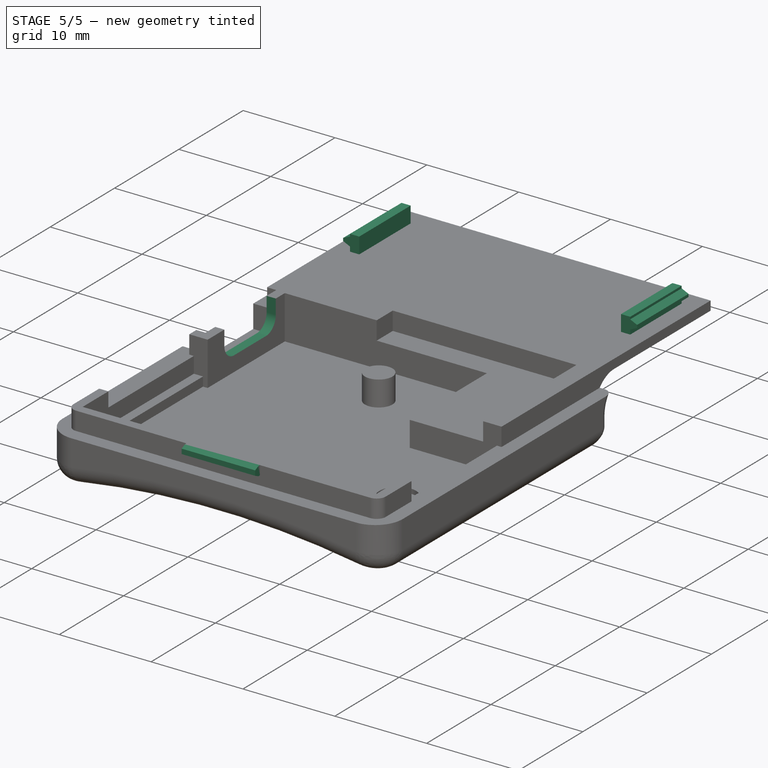
[diagram: stage 5 of 5 — iso view after this stage's code; geometry added in this stage tinted green]
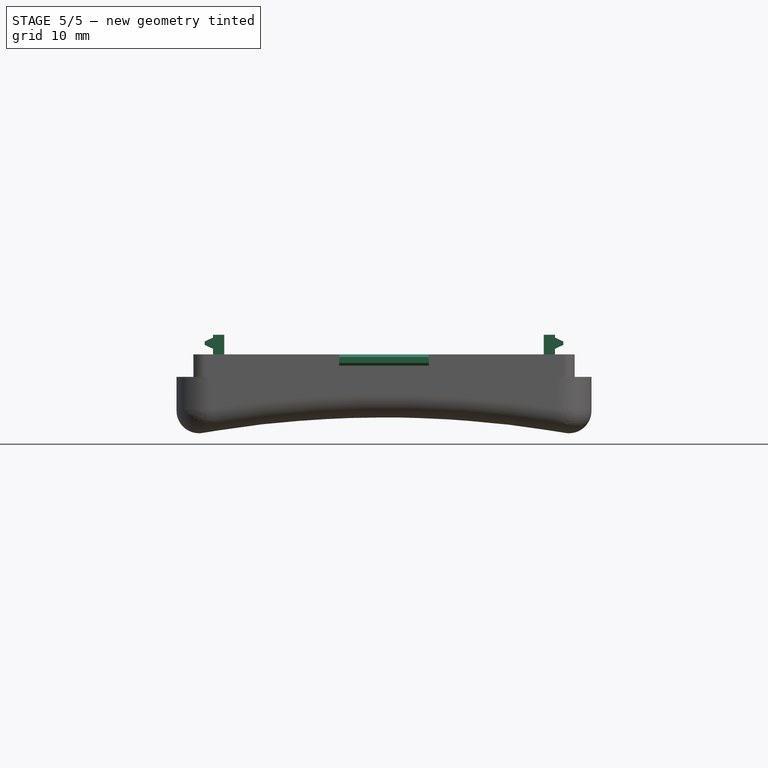
[diagram: stage 5 of 5 — front view after this stage's code; geometry added in this stage tinted green]
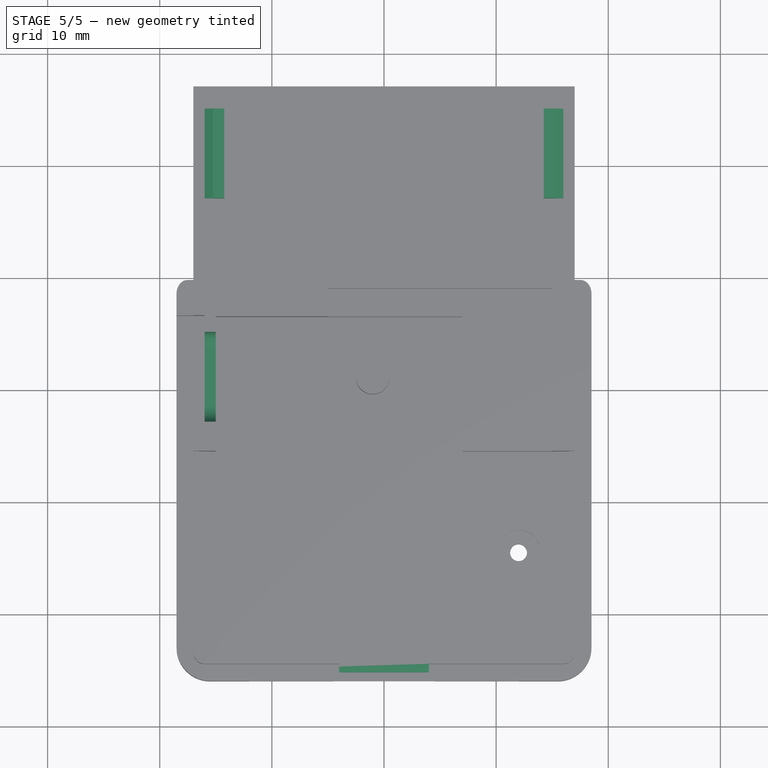
[diagram: stage 5 of 5 — top view after this stage's code; geometry added in this stage tinted green]
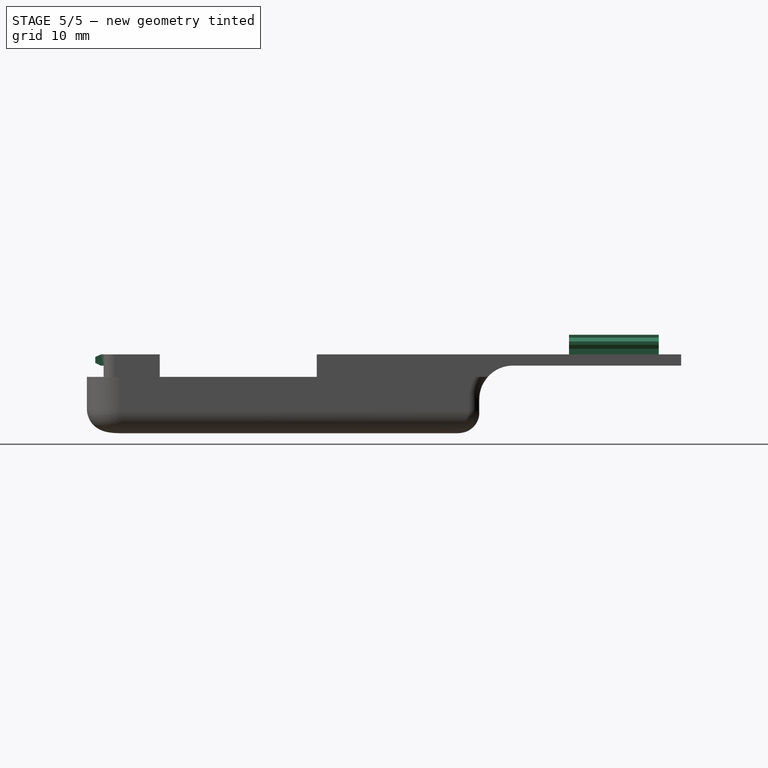
[diagram: stage 5 of 5 — right view after this stage's code; geometry added in this stage tinted green]
FEATURE [Sketcher::SketchObject] Sketch025
  MapMode = 5
  Placement = pos=(-16,0,0) rot=(0.57735,-0.57735,-0.57735;2.0944rad)
  Support = -> [Pocket008]
  sketch-geometry (6):
    g0: LineSegment StartX=-15.1 StartY=10 StartZ=0 EndX=-7.1 EndY=10 EndZ=0
    g1: LineSegment StartX=-7.1 StartY=10 StartZ=0 EndX=-7.1 EndY=8.4 EndZ=0
    g2: LineSegment StartX=-8.6 StartY=6.9 StartZ=0 EndX=-13.6 EndY=6.9 EndZ=0
    g3: LineSegment StartX=-15.1 StartY=8.4 StartZ=0 EndX=-15.1 EndY=10 EndZ=0
    g4: ArcOfCircle CenterX=-13.6 CenterY=8.4 CenterZ=0 NormalX=0 NormalY=0 NormalZ=1 AngleXU=0 Radius=1.5 StartAngle=3.14159 EndAngle=4.71239
    g5: ArcOfCircle CenterX=-8.6 CenterY=8.4 CenterZ=0 NormalX=0 NormalY=0 NormalZ=1 AngleXU=0 Radius=1.5 StartAngle=4.71239 EndAngle=6.28319
  constraints (16):
    c: Horizontal(g0)
    c: Vertical(g1)
    c: Horizontal(g2)
    c: Vertical(g3)
    c: Coincident(g1,g0)
    c: Coincident(g3,g0)
    c: DistanceX(g0,g0) = 8
    c: Tangent(g3,g4) = 1.5708
    c: Tangent(g2,g4) = 1.5708
    c: Tangent(g2,g5) = 1.5708
    c: Tangent(g1,g5) = 1.5708
    c: DistanceX(g0,g-1) = 7.1
    c: Radius(g4) = 1.5
    c: Equal(g4,g5)
    c: DistanceY(g-1,g2) = 6.9
    c: DistanceY(g1,g1) = 1.6
FEATURE [PartDesign::Pocket] Pocket009
  BaseFeature = -> Pocket008
  Length = 1
  Profile = -> Sketch025
  Type = 0
FEATURE [Sketcher::SketchObject] Sketch026
  MapMode = 5
  Placement = pos=(0,0,10) rot=(0,0,1;0rad)
  Support = -> [Pocket009]
  sketch-geometry (8):
    g0: LineSegment StartX=-16 StartY=35 StartZ=0 EndX=-14.25 EndY=35 EndZ=0
    g1: LineSegment StartX=-14.25 StartY=35 StartZ=0 EndX=-14.25 EndY=27 EndZ=0
    g2: LineSegment StartX=-14.25 StartY=27 StartZ=0 EndX=-16 EndY=27 EndZ=0
    g3: LineSegment StartX=-16 StartY=27 StartZ=0 EndX=-16 EndY=35 EndZ=0
    g4: LineSegment StartX=16 StartY=35 StartZ=0 EndX=14.25 EndY=35 EndZ=0
    g5: LineSegment StartX=14.25 StartY=35 StartZ=0 EndX=14.25 EndY=27 EndZ=0
    g6: LineSegment StartX=14.25 StartY=27 StartZ=0 EndX=16 EndY=27 EndZ=0
    g7: LineSegment StartX=16 StartY=27 StartZ=0 EndX=16 EndY=35 EndZ=0
  constraints (24):
    c: Coincident(g0,g1)
    c: Coincident(g1,g2)
    c: Coincident(g2,g3)
    c: Coincident(g3,g0)
    c: Horizontal(g0)
    c: Horizontal(g2)
    c: Vertical(g1)
    c: Vertical(g3)
    c: Coincident(g4,g5)
    c: Coincident(g5,g6)
    c: Coincident(g6,g7)
    c: Coincident(g7,g4)
    c: Horizontal(g4)
    c: Horizontal(g6)
    c: Vertical(g5)
    c: Vertical(g7)
    c: DistanceY(g-1,g5) = 27
    c: DistanceX(g-1,g5) = 14.25
    c: DistanceX(g6,g6) = 1.75
    c: DistanceY(g7,g7) = 8
    c: Equal(g7,g1)
    c: Equal(g0,g4)
    c: DistanceX(g0,g4) = 28.5
    c: DistanceY(g0,g4) = 0
FEATURE [PartDesign::Pad] Pad003
  BaseFeature = -> Pocket009
  Length = 1.75
  Length2 = 100
  Profile = -> Sketch026
  Type = 0
FEATURE [Sketcher::SketchObject] Sketch027
  MapMode = 5
  Placement = pos=(0,35,0) rot=(0,0.707107,0.707107;3.14159rad)
  Support = -> [Pad003]
  sketch-geometry (16):
    g0: LineSegment StartX=-15.25 StartY=11.5 StartZ=0 EndX=-16 EndY=11.1503 EndZ=0
    g1: LineSegment StartX=-16 StartY=11.1503 StartZ=0 EndX=-16 EndY=10.8497 EndZ=0
    g2: LineSegment StartX=-16 StartY=10.8497 StartZ=0 EndX=-15.25 EndY=10.5 EndZ=0
    g3: LineSegment StartX=-15.25 StartY=10.5 StartZ=0 EndX=-15.25 EndY=10 EndZ=0
    g4: LineSegment StartX=-15.25 StartY=10 StartZ=0 EndX=-16.25 EndY=10 EndZ=0
    g5: LineSegment StartX=-16.25 StartY=10 StartZ=0 EndX=-16.25 EndY=12 EndZ=0
    g6: LineSegment StartX=-16.25 StartY=12 StartZ=0 EndX=-15.25 EndY=12 EndZ=0
    g7: LineSegment StartX=-15.25 StartY=12 StartZ=0 EndX=-15.25 EndY=11.5 EndZ=0
    g8: LineSegment StartX=16 StartY=11.1503 StartZ=0 EndX=15.25 EndY=11.5 EndZ=0
    g9: LineSegment StartX=15.25 StartY=11.5 StartZ=0 EndX=15.25 EndY=12 EndZ=0
    g10: LineSegment StartX=15.25 StartY=12 StartZ=0 EndX=16.25 EndY=12 EndZ=0
    g11: LineSegment StartX=16.25 StartY=12 StartZ=0 EndX=16.25 EndY=10 EndZ=0
    g12: LineSegment StartX=16.25 StartY=10 StartZ=0 EndX=15.25 EndY=10 EndZ=0
    g13: LineSegment StartX=15.25 StartY=10 StartZ=0 EndX=15.25 EndY=10.5 EndZ=0
    g14: LineSegment StartX=15.25 StartY=10.5 StartZ=0 EndX=16 EndY=10.8497 EndZ=0
    g15: LineSegment StartX=16 StartY=10.8497 StartZ=0 EndX=16 EndY=11.1503 EndZ=0
  constraints (48):
    c: Coincident(g0,g1)
    c: Vertical(g1)
    c: Coincident(g1,g2)
    c: Coincident(g2,g3)
    c: Vertical(g3)
    c: Coincident(g3,g4)
    c: Horizontal(g4)
    c: Coincident(g4,g5)
    c: Vertical(g5)
    c: Coincident(g5,g6)
    c: Horizontal(g6)
    c: Coincident(g6,g7)
    c: Coincident(g7,g0)
    c: Vertical(g7)
    c: DistanceX(g3,g-1) = 15.25
    c: DistanceY(g-1,g3) = 10
    c: DistanceY(g5,g5) = 2
    c: DistanceY(g7,g7) = 0.5
    c: DistanceY(g3,g3) = 0.5
    c: Angle(g6,g0) = 0.436332
    c: DistanceX(g0,g0) = 0.75
    c: DistanceX(g6,g6) = 1
    c: Angle(g2,g4) = 0.436332
    c: DistanceX(g0,g2) = 0
    c: Coincident(g8,g9)
    c: Coincident(g9,g10)
    c: Horizontal(g10)
    c: Coincident(g10,g11)
    c: Vertical(g11)
    c: Coincident(g11,g12)
    c: Horizontal(g12)
    c: Coincident(g12,g13)
    c: Vertical(g13)
    c: Coincident(g13,g14)
    c: Coincident(g14,g15)
    c: Coincident(g15,g8)
    c: Vertical(g15)
    c: DistanceX(g10,g10) = 1
    c: DistanceY(g11,g11) = 2
    c: Vertical(g9)
    c: DistanceX(g8,g13) = 0
    c: DistanceX(g8,g8) = 0.75
    c: DistanceY(g9,g9) = 0.5
    c: DistanceY(g13,g13) = 0.5
    c: Angle(g8,g10) = 0.436332
    c: Angle(g12,g14) = 0.436332
    c: DistanceX(g-1,g12) = 15.25
    c: DistanceY(g-1,g12) = 10
FEATURE [PartDesign::Pocket] Pocket010  label="Pocket011"
  BaseFeature = -> Pad003
  Length = 8
  Profile = -> Sketch027
  Type = 0
FEATURE [Sketcher::SketchObject] Sketch028
  MapMode = 5
  Placement = pos=(0,-14.5,0) rot=(1,0,0;1.5708rad)
  Support = -> [Pocket010]
  sketch-geometry (4):
    g0: LineSegment StartX=-4 StartY=10 StartZ=0 EndX=4 EndY=10 EndZ=0
    g1: LineSegment StartX=4 StartY=10 StartZ=0 EndX=4 EndY=9 EndZ=0
    g2: LineSegment StartX=4 StartY=9 StartZ=0 EndX=-4 EndY=9 EndZ=0
    g3: LineSegment StartX=-4 StartY=9 StartZ=0 EndX=-4 EndY=10 EndZ=0
  constraints (12):
    c: Coincident(g0,g1)
    c: Coincident(g1,g2)
    c: Coincident(g2,g3)
    c: Coincident(g3,g0)
    c: Horizontal(g0)
    c: Horizontal(g2)
    c: Vertical(g1)
    c: Vertical(g3)
    c: DistanceY(g-1,g1) = 9
    c: DistanceX(g-1,g1) = 4
    c: DistanceX(g0,g0) = 8
    c: DistanceY(g3,g3) = 1
FEATURE [PartDesign::Pad] Pad004
  BaseFeature = -> Pocket010
  Length = 1
  Length2 = 100
  Profile = -> Sketch028
  Type = 0
FEATURE [Sketcher::SketchObject] Sketch029
  MapMode = 5
  Placement = pos=(4,0,0) rot=(0.57735,0.57735,0.57735;2.0944rad)
  Support = -> [Pad004]
  sketch-geometry (8):
    g0: LineSegment StartX=-14.75 StartY=10.25 StartZ=0 EndX=-14.75 EndY=10 EndZ=0
    g1: LineSegment StartX=-14.75 StartY=10 StartZ=0 EndX=-15.25 EndY=9.76685 EndZ=0
    g2: LineSegment StartX=-15.25 StartY=9.76685 StartZ=0 EndX=-15.25 EndY=9.23315 EndZ=0
    g3: LineSegment StartX=-15.25 StartY=9.23315 StartZ=0 EndX=-14.75 EndY=9 EndZ=0
    g4: LineSegment StartX=-14.75 StartY=9 StartZ=0 EndX=-14.75 EndY=8.75 EndZ=0
    g5: LineSegment StartX=-14.75 StartY=8.75 StartZ=0 EndX=-15.75 EndY=8.75 EndZ=0
    g6: LineSegment StartX=-15.75 StartY=8.75 StartZ=0 EndX=-15.75 EndY=10.25 EndZ=0
    g7: LineSegment StartX=-15.75 StartY=10.25 StartZ=0 EndX=-14.75 EndY=10.25 EndZ=0
  constraints (24):
    c: Vertical(g0)
    c: Coincident(g0,g1)
    c: Coincident(g1,g2)
    c: Vertical(g2)
    c: Coincident(g2,g3)
    c: Coincident(g3,g4)
    c: Vertical(g4)
    c: Coincident(g4,g5)
    c: Horizontal(g5)
    c: Coincident(g5,g6)
    c: Vertical(g6)
    c: Coincident(g6,g7)
    c: Coincident(g7,g0)
    c: Horizontal(g7)
    c: DistanceY(g6,g6) = 1.5
    c: DistanceY(g0,g0) = 0.25
    c: DistanceY(g4,g4) = 0.25
    c: DistanceY(g-1,g3) = 9
    c: DistanceX(g4,g-1) = 14.75
    c: Angle(g7,g1) = 0.436332
    c: Angle(g3,g5) = 0.436332
    c: Equal(g5,g7)
    c: DistanceX(g5,g1) = 0.5
    c: DistanceX(g7,g7) = 1
FEATURE [PartDesign::Pocket] Pocket011  label="LT_Lower"
  BaseFeature = -> Pad004
  Length = 10
  Profile = -> Sketch029
  Type = 0
FEATURE [PartDesign::Body] Body
  Group = -> [Sketch,Pad,Sketch001,Pocket,Sketch002,Pocket001,Sketch003,Sketch004,Sketch005,Sketch006,Sketch007,Sketch008,Sketch009,Sketch010,Sketch011,Sketch012,Sketch013,Fillet,Fillet001,Fillet002,Fillet003,Fillet004,Fillet005,Sketch014,Sketch015,Pocket002,Pocket003,Sketch016,Pocket004,Fillet007,Sketch019,Pocket005,Sketch020,Pad001,Sketch021,Pad002,Sketch022,Pocket006,Sketch023,Pocket007,Sketch024,Pocket008,+10 more]
  Origin = -> Origin
  Tip = -> Pocket011
FEATURE [Part::Feature] Part__Feature010  label="LT_Upper"
  shape: bbox 37.49 x 54 x 5.728 mm, 77 faces (baked)
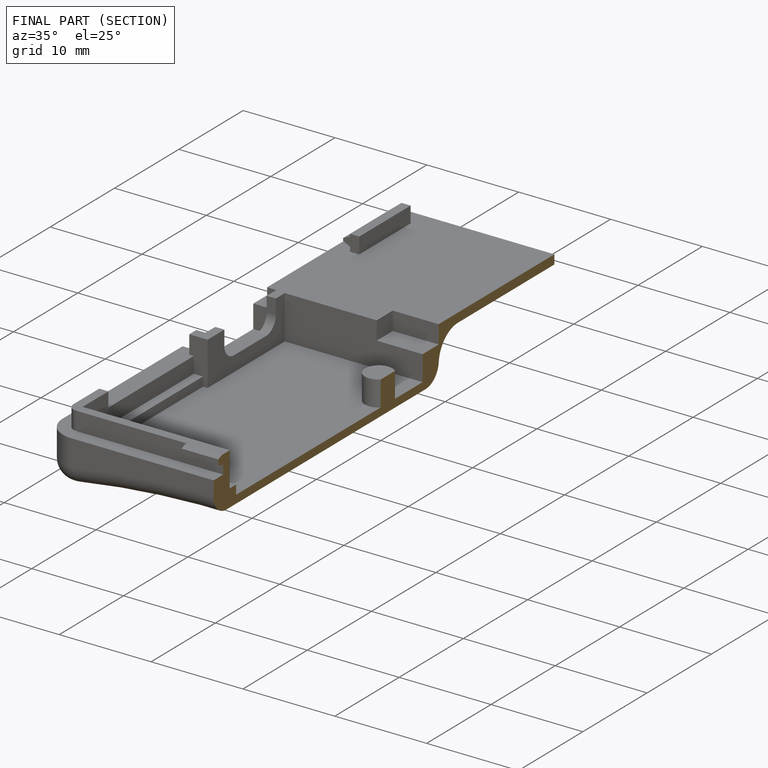
[diagram: finished part — half-section view (interior)]
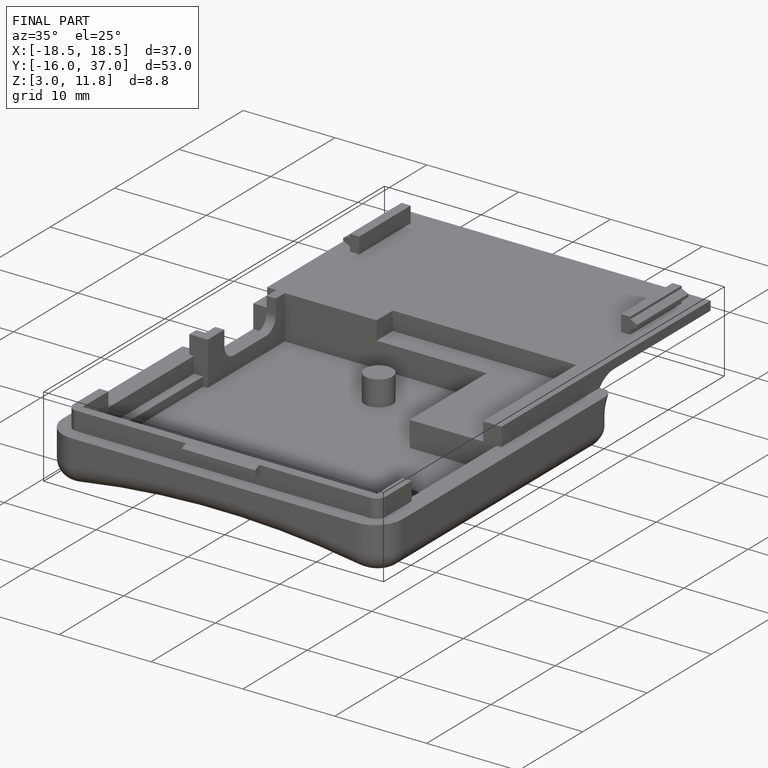
[diagram: finished part — iso view with bounding-box wireframe]
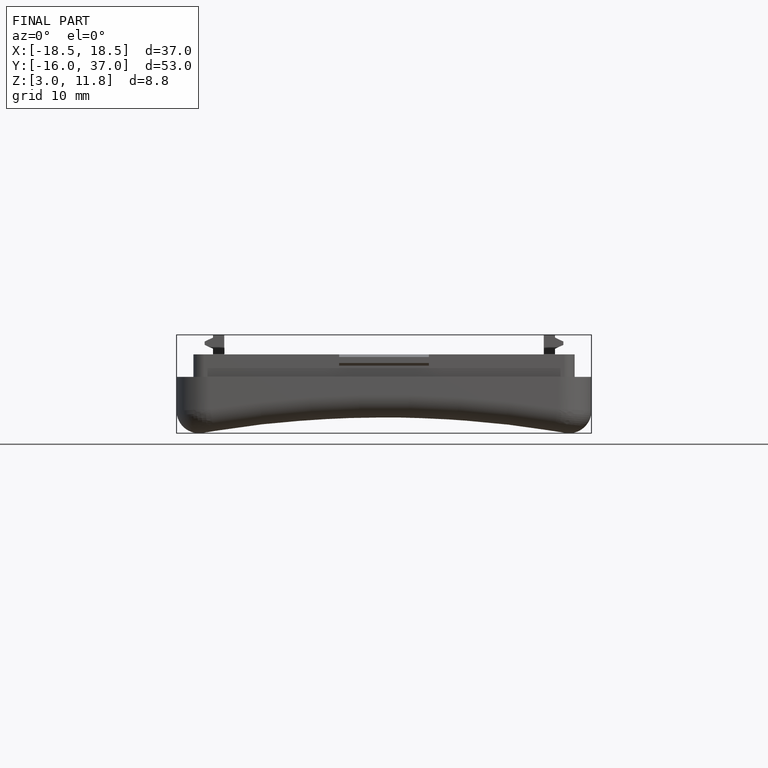
[diagram: finished part — front view with bounding-box wireframe]
